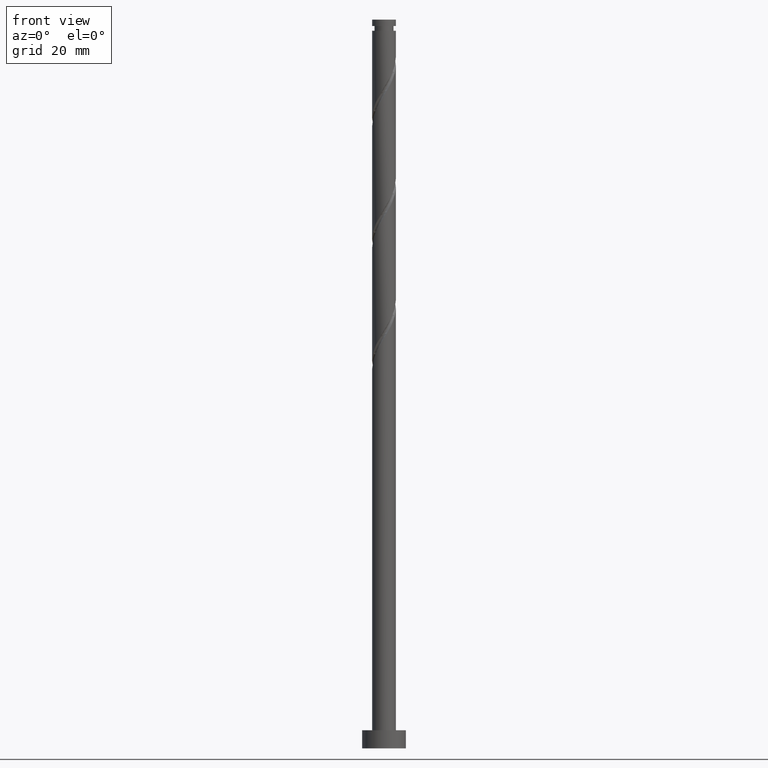
[diagram: clean part render]
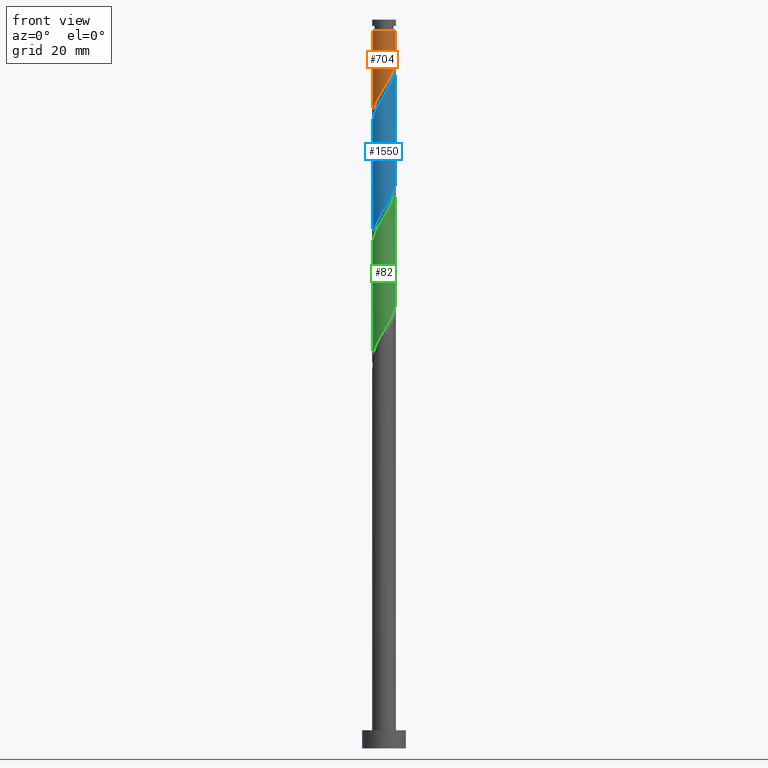
[diagram: same view with three faces highlighted in distinct colors, each labeled with its STEP entity id]
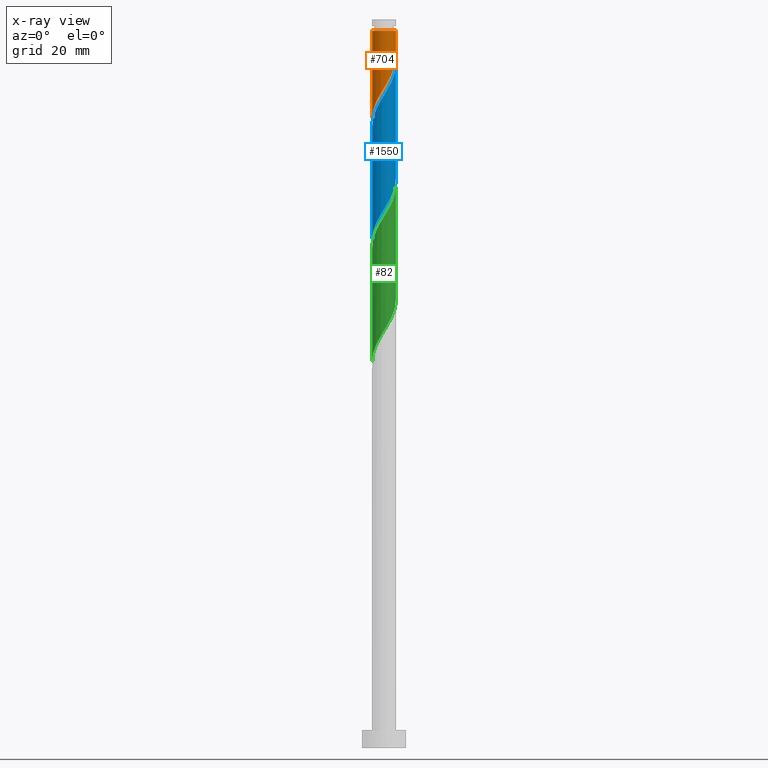
[diagram: x-ray of the same camera — body ghosted, the three highlighted faces saturated]
A machine part, front view with three faces highlighted in distinct colors.
The next image is the same camera in x-ray (body ghosted, the three faces saturated) — at least one of them is partly hidden behind the body in this view.
Their STEP definitions:

[orange] entity #704 — the highlighted cylindrical surface (edge-blend (fillet) strip) has radius 3.25 mm, axis along (-0, -0, -1).
#2 = CARTESIAN_POINT ( 'NONE',  ( 3.249999999999988454, 3.980102097228890836E-16, 196.9325658631663032 ) ) ;
#14 = ORIENTED_EDGE ( 'NONE', *, *, #625, .T. ) ;
#129 = DIRECTION ( 'NONE',  ( -0.000000000000000000, -0.000000000000000000, -1.000000000000000000 ) ) ;
#170 = CARTESIAN_POINT ( 'NONE',  ( -1.449043299168925270, -2.909084652796070980, 178.8770103076107603 ) ) ;
#187 = CARTESIAN_POINT ( 'NONE',  ( -3.250000000000000444, 0.000000000000000000, 200.0000000000000000 ) ) ;
#238 = CARTESIAN_POINT ( 'NONE',  ( -3.081661828113089197, -1.032405141962540851, 174.7103436409441031 ) ) ;
#270 = CIRCLE ( 'NONE', #360, 3.249999999999988454 ) ;
#314 = CARTESIAN_POINT ( 'NONE',  ( 0.1996340181341312026, -3.243862860665293280, 181.6547880853885601 ) ) ;
#351 = CARTESIAN_POINT ( 'NONE',  ( -0.6467418341193043041, -3.184999999999999165, 180.2658991964996460 ) ) ;
#360 = AXIS2_PLACEMENT_3D ( 'NONE', #1067, #1060, #1461 ) ;
#435 = CARTESIAN_POINT ( 'NONE',  ( 0.000000000000000000, 0.000000000000000000, 200.0000000000000000 ) ) ;
#455 = CYLINDRICAL_SURFACE ( 'NONE', #1470, 3.250000000000000444 ) ;
#466 = EDGE_LOOP ( 'NONE', ( #1538, #14, #701, #842 ) ) ;
#478 = CARTESIAN_POINT ( 'NONE',  ( 1.794819561496366900, -2.709450634661939805, 184.4325658631662748 ) ) ;
#490 =( BOUNDED_CURVE ( )  B_SPLINE_CURVE ( 2, ( #731, #598, #1007, #566, #1544, #1655, #607, #712, #478, #975, #1521, #1554, #314, #1016, #351, #881, #170, #577, #1022, #1302, #1570, #1289, #238, #493, #904, #647, #1591 ),
 .UNSPECIFIED., .F., .T. ) 
 B_SPLINE_CURVE_WITH_KNOTS ( ( 3, 2, 2, 2, 2, 2, 2, 2, 2, 2, 2, 2, 2, 3 ),
 ( 0.3045317669814464612, 0.3125000000000000000, 0.3229166666666666852, 0.3333333333333333148, 0.3437500000000000000, 0.3541666666666666852, 0.3645833333333333148, 0.3750000000000000000, 0.3854166666666666852, 0.3958333333333333148, 0.4062500000000000000, 0.4166666666666666852, 0.4270833333333333148, 0.4295317669814461836 ),
 .UNSPECIFIED. ) 
 CURVE ( )  GEOMETRIC_REPRESENTATION_ITEM ( )  RATIONAL_B_SPLINE_CURVE ( ( 0.9062941362546435009, 0.9031415850403481382, 0.9090909090909231605, 0.9013135103398417503, 0.9090909090909231605, 0.9013135103398417503, 0.9090909090909231605, 0.9013135103398417503, 0.9090909090909231605, 0.9013135103398417503, 0.9090909090909231605, 0.9013135103398417503, 0.9090909090909231605, 0.9013135103398417503, 0.9090909090909231605, 0.9013135103398417503, 0.9090909090909231605, 0.9013135103398417503, 0.9090909090909231605, 0.9013135103398417503, 0.9090909090909231605, 0.9013135103398417503, 0.9090909090909231605, 0.9013135103398417503, 0.9090909090909231605, 0.9072628343904171055, 0.9062941362546437229 ) ) 
 REPRESENTATION_ITEM ( '' )  );
#493 = CARTESIAN_POINT ( 'NONE',  ( -3.217580543574526164, -0.6266966655717119972, 174.0158991964995892 ) ) ;
#566 = CARTESIAN_POINT ( 'NONE',  ( 3.099854822243937935, -1.066055038935161958, 187.9047880853885601 ) ) ;
#577 = CARTESIAN_POINT ( 'NONE',  ( -1.832031559402689469, -2.718314483348201804, 178.1825658631663032 ) ) ;
#578 = VERTEX_POINT ( 'NONE', #1743 ) ;
#587 = VERTEX_POINT ( 'NONE', #1086 ) ;
#594 = DIRECTION ( 'NONE',  ( -0.000000000000000000, -0.000000000000000000, -1.000000000000000000 ) ) ;
#598 = CARTESIAN_POINT ( 'NONE',  ( 3.249999999999998668, -0.3266372899592530077, 189.1293728158537419 ) ) ;
#607 = CARTESIAN_POINT ( 'NONE',  ( 2.434919993993784004, -2.152594858037459868, 185.8214547520552173 ) ) ;
#625 = EDGE_CURVE ( 'NONE', #1406, #578, #270, .T. ) ;
#647 = CARTESIAN_POINT ( 'NONE',  ( -3.249999999999999112, -0.09991134288744130121, 173.1592962064045480 ) ) ;
#680 = EDGE_CURVE ( 'NONE', #578, #682, #1246, .T. ) ;
#682 = VERTEX_POINT ( 'NONE', #982 ) ;
#701 = ORIENTED_EDGE ( 'NONE', *, *, #680, .T. ) ;
#704 = ADVANCED_FACE ( 'NONE', ( #1405 ), #455, .T. ) ;
#712 = CARTESIAN_POINT ( 'NONE',  ( 2.151525504639366648, -2.473158156672227381, 185.1270103076107603 ) ) ;
#731 = CARTESIAN_POINT ( 'NONE',  ( 3.249999999999999556, 1.136487617715127584E-15, 189.6627991850430135 ) ) ;
#842 = ORIENTED_EDGE ( 'NONE', *, *, #1678, .F. ) ;
#857 = DIRECTION ( 'NONE',  ( -1.000000000000000000, 0.000000000000000000, 0.000000000000000000 ) ) ;
#881 = CARTESIAN_POINT ( 'NONE',  ( -1.066055038935160404, -3.099854822243938823, 179.5714547520551605 ) ) ;
#904 = CARTESIAN_POINT ( 'NONE',  ( -3.243862860665293280, -0.1996340181341322295, 173.3214547520552173 ) ) ;
#936 = CARTESIAN_POINT ( 'NONE',  ( 3.250000000000000444, 3.980102097228898231E-16, 200.0000000000000000 ) ) ;
#975 = CARTESIAN_POINT ( 'NONE',  ( 1.438113618353368262, -2.945743112651649565, 183.7381214187218177 ) ) ;
#982 = CARTESIAN_POINT ( 'NONE',  ( -3.250000000000000000, 2.542143355415417027E-15, 172.9961325183763847 ) ) ;
#1007 = CARTESIAN_POINT ( 'NONE',  ( 3.184999999999999165, -0.6467418341193044151, 188.5992325298330172 ) ) ;
#1016 = CARTESIAN_POINT ( 'NONE',  ( -0.2274286293034488982, -3.270145177756059507, 180.9603436409440747 ) ) ;
#1022 = CARTESIAN_POINT ( 'NONE',  ( -2.152594858037459424, -2.434919993993784448, 177.4881214187218461 ) ) ;
#1060 = DIRECTION ( 'NONE',  ( -0.000000000000000000, -0.000000000000000000, -1.000000000000000000 ) ) ;
#1067 = CARTESIAN_POINT ( 'NONE',  ( 0.000000000000000000, 0.000000000000000000, 196.9325658631663032 ) ) ;
#1086 = CARTESIAN_POINT ( 'NONE',  ( 3.249999999999999556, 1.136487617715127584E-15, 189.6627991850430135 ) ) ;
#1197 = LINE ( 'NONE', #936, #1569 ) ;
#1246 = LINE ( 'NONE', #187, #1256 ) ;
#1256 = VECTOR ( 'NONE', #594, 1000.000000000000000 ) ;
#1266 = DIRECTION ( 'NONE',  ( -0.000000000000000000, -0.000000000000000000, -1.000000000000000000 ) ) ;
#1289 = CARTESIAN_POINT ( 'NONE',  ( -2.945743112651649565, -1.438113618353368262, 175.4047880853885601 ) ) ;
#1302 = CARTESIAN_POINT ( 'NONE',  ( -2.473158156672227381, -2.151525504639367092, 176.7936769742773322 ) ) ;
#1405 = FACE_OUTER_BOUND ( 'NONE', #466, .T. ) ;
#1406 = VERTEX_POINT ( 'NONE', #2 ) ;
#1436 = EDGE_CURVE ( 'NONE', #1406, #587, #1197, .T. ) ;
#1461 = DIRECTION ( 'NONE',  ( -1.000000000000000000, 0.000000000000000000, 0.000000000000000000 ) ) ;
#1470 = AXIS2_PLACEMENT_3D ( 'NONE', #435, #1266, #857 ) ;
#1521 = CARTESIAN_POINT ( 'NONE',  ( 1.032405141962540185, -3.081661828113089197, 183.0436769742774175 ) ) ;
#1538 = ORIENTED_EDGE ( 'NONE', *, *, #1436, .F. ) ;
#1544 = CARTESIAN_POINT ( 'NONE',  ( 2.909084652796070092, -1.449043299168927268, 187.2103436409441031 ) ) ;
#1554 = CARTESIAN_POINT ( 'NONE',  ( 0.6266966655717109980, -3.217580543574526608, 182.3492325298329320 ) ) ;
#1569 = VECTOR ( 'NONE', #129, 1000.000000000000000 ) ;
#1570 = CARTESIAN_POINT ( 'NONE',  ( -2.709450634661939361, -1.794819561496368454, 176.0992325298330741 ) ) ;
#1591 = CARTESIAN_POINT ( 'NONE',  ( -3.250000000000000000, 2.542143355415417027E-15, 172.9961325183763847 ) ) ;
#1655 = CARTESIAN_POINT ( 'NONE',  ( 2.718314483348200916, -1.832031559402691023, 186.5158991964996176 ) ) ;
#1678 = EDGE_CURVE ( 'NONE', #587, #682, #490, .T. ) ;
#1743 = CARTESIAN_POINT ( 'NONE',  ( -3.249999999999988454, 0.000000000000000000, 196.9325658631663032 ) ) ;

[blue] entity #1550 — the highlighted cylindrical surface (edge-blend (fillet) strip) has radius 3.25 mm, axis along (-0, -0, -1).
#7 = CARTESIAN_POINT ( 'NONE',  ( 0.6467418341193037490, -3.185000000000004494, 180.2658991964995892 ) ) ;
#48 = CARTESIAN_POINT ( 'NONE',  ( 2.152594858037460313, -2.434919993993788889, 183.0436769742774459 ) ) ;
#68 =( BOUNDED_CURVE ( )  B_SPLINE_CURVE ( 2, ( #1065, #1740, #1189, #1611, #252, #1056, #405, #1473, #522, #1596, #810, #1218, #684, #1227, #7, #552, #1091, #391, #48, #958, #845, #1109, #462, #590, #293, #1097, #432 ),
 .UNSPECIFIED., .F., .T. ) 
 B_SPLINE_CURVE_WITH_KNOTS ( ( 3, 2, 2, 2, 2, 2, 2, 2, 2, 2, 2, 2, 2, 3 ),
 ( 0.5545317669814462391, 0.5625000000000000000, 0.5729166666666667407, 0.5833333333333332593, 0.5937500000000000000, 0.6041666666666667407, 0.6145833333333332593, 0.6250000000000000000, 0.6354166666666667407, 0.6458333333333332593, 0.6562500000000000000, 0.6666666666666667407, 0.6770833333333332593, 0.6795317669814461281 ),
 .UNSPECIFIED. ) 
 CURVE ( )  GEOMETRIC_REPRESENTATION_ITEM ( )  RATIONAL_B_SPLINE_CURVE ( ( 0.9062941362546506063, 0.9031415850403549106, 0.9090909090909304879, 0.9013135103398486336, 0.9090909090909304879, 0.9013135103398486336, 0.9090909090909304879, 0.9013135103398486336, 0.9090909090909304879, 0.9013135103398486336, 0.9090909090909304879, 0.9013135103398486336, 0.9090909090909304879, 0.9013135103398486336, 0.9090909090909304879, 0.9013135103398486336, 0.9090909090909304879, 0.9013135103398486336, 0.9090909090909304879, 0.9013135103398486336, 0.9090909090909304879, 0.9013135103398486336, 0.9090909090909304879, 0.9013135103398486336, 0.9090909090909304879, 0.9072628343904243220, 0.9062941362546508284 ) ) 
 REPRESENTATION_ITEM ( '' )  );
#145 = VERTEX_POINT ( 'NONE', #382 ) ;
#149 = CARTESIAN_POINT ( 'NONE',  ( -3.249999999999999556, -0.09991134288743169778, 139.8259628730711484 ) ) ;
#213 = VERTEX_POINT ( 'NONE', #902 ) ;
#252 = CARTESIAN_POINT ( 'NONE',  ( -2.909084652796075865, -1.449043299168925714, 173.3214547520551889 ) ) ;
#265 = CARTESIAN_POINT ( 'NONE',  ( 2.718314483348200916, -1.832031559402691023, 153.1825658631662748 ) ) ;
#273 = CARTESIAN_POINT ( 'NONE',  ( -2.945743112651649565, -1.438113618353368262, 142.0714547520551605 ) ) ;
#281 = CARTESIAN_POINT ( 'NONE',  ( 3.249999999999999556, 4.605765608634991276E-15, 156.3294658517096991 ) ) ;
#293 = CARTESIAN_POINT ( 'NONE',  ( 3.243862860665297276, -0.1996340181341360320, 187.2103436409440747 ) ) ;
#302 = CARTESIAN_POINT ( 'NONE',  ( -1.449043299168925270, -2.909084652796070980, 145.5436769742774459 ) ) ;
#326 = EDGE_CURVE ( 'NONE', #145, #213, #68, .T. ) ;
#333 = VECTOR ( 'NONE', #943, 1000.000000000000000 ) ;
#382 = CARTESIAN_POINT ( 'NONE',  ( -3.250000000000004885, 3.573954482025175950E-15, 170.8689992079562217 ) ) ;
#391 = CARTESIAN_POINT ( 'NONE',  ( 1.832031559402690801, -2.718314483348208022, 182.3492325298329888 ) ) ;
#395 = CARTESIAN_POINT ( 'NONE',  ( -3.249999999999999556, 1.269576299263346668E-14, 139.6627991850430135 ) ) ;
#403 = CARTESIAN_POINT ( 'NONE',  ( -3.243862860665293280, -0.1996340181341322295, 139.9881214187219030 ) ) ;
#405 = CARTESIAN_POINT ( 'NONE',  ( -2.434919993993788889, -2.152594858037460313, 174.7103436409440462 ) ) ;
#429 = CARTESIAN_POINT ( 'NONE',  ( 0.1996340181341312026, -3.243862860665293280, 148.3214547520552458 ) ) ;
#432 = CARTESIAN_POINT ( 'NONE',  ( 3.250000000000004441, -1.151441402158738550E-15, 187.5356658746228788 ) ) ;
#456 = EDGE_LOOP ( 'NONE', ( #1239, #1061, #1400, #1003 ) ) ;
#462 = CARTESIAN_POINT ( 'NONE',  ( 3.081661828113092305, -1.032405141962544626, 185.8214547520551037 ) ) ;
#522 = CARTESIAN_POINT ( 'NONE',  ( -1.794819561496372229, -2.709450634661942026, 176.0992325298329035 ) ) ;
#535 = CARTESIAN_POINT ( 'NONE',  ( -3.217580543574526164, -0.6266966655717119972, 140.6825658631663032 ) ) ;
#542 = CARTESIAN_POINT ( 'NONE',  ( 2.434919993993784004, -2.152594858037459868, 152.4881214187218177 ) ) ;
#552 = CARTESIAN_POINT ( 'NONE',  ( 1.066055038935160182, -3.099854822243945929, 180.9603436409440462 ) ) ;
#590 = CARTESIAN_POINT ( 'NONE',  ( 3.217580543574532381, -0.6266966655717167711, 186.5158991964997028 ) ) ;
#669 = CARTESIAN_POINT ( 'NONE',  ( -3.250000000000000444, 0.000000000000000000, 200.0000000000000000 ) ) ;
#673 = CARTESIAN_POINT ( 'NONE',  ( 3.250000000000001332, -0.3266372899592377976, 155.7960394825204276 ) ) ;
#684 = CARTESIAN_POINT ( 'NONE',  ( -0.1996340181341343112, -3.243862860665297276, 178.8770103076107034 ) ) ;
#700 = DIRECTION ( 'NONE',  ( -0.000000000000000000, -0.000000000000000000, -1.000000000000000000 ) ) ;
#755 = VERTEX_POINT ( 'NONE', #1101 ) ;
#808 = CYLINDRICAL_SURFACE ( 'NONE', #1397, 3.250000000000000444 ) ;
#810 = CARTESIAN_POINT ( 'NONE',  ( -1.032405141962544182, -3.081661828113091861, 177.4881214187218177 ) ) ;
#820 = CARTESIAN_POINT ( 'NONE',  ( 1.032405141962540185, -3.081661828113089197, 149.7103436409440462 ) ) ;
#830 = CARTESIAN_POINT ( 'NONE',  ( -2.473158156672227381, -2.151525504639367092, 143.4603436409440747 ) ) ;
#845 = CARTESIAN_POINT ( 'NONE',  ( 2.709450634661941137, -1.794819561496373117, 184.4325658631662463 ) ) ;
#902 = CARTESIAN_POINT ( 'NONE',  ( 3.250000000000004441, -1.151441402158738550E-15, 187.5356658746228788 ) ) ;
#913 =( BOUNDED_CURVE ( )  B_SPLINE_CURVE ( 2, ( #281, #673, #1215, #1089, #1463, #265, #542, #1747, #956, #1602, #820, #1335, #429, #1499, #948, #1207, #302, #1077, #1615, #830, #1348, #273, #1738, #535, #403, #149, #395 ),
 .UNSPECIFIED., .F., .T. ) 
 B_SPLINE_CURVE_WITH_KNOTS ( ( 3, 2, 2, 2, 2, 2, 2, 2, 2, 2, 2, 2, 2, 3 ),
 ( 0.5545317669814461281, 0.5625000000000000000, 0.5729166666666666297, 0.5833333333333333703, 0.5937500000000000000, 0.6041666666666666297, 0.6145833333333333703, 0.6250000000000000000, 0.6354166666666666297, 0.6458333333333333703, 0.6562500000000000000, 0.6666666666666666297, 0.6770833333333333703, 0.6795317669814464612 ),
 .UNSPECIFIED. ) 
 CURVE ( )  GEOMETRIC_REPRESENTATION_ITEM ( )  RATIONAL_B_SPLINE_CURVE ( ( 0.9062941362546436119, 0.9031415850403476941, 0.9090909090909231605, 0.9013135103398417503, 0.9090909090909231605, 0.9013135103398417503, 0.9090909090909231605, 0.9013135103398417503, 0.9090909090909231605, 0.9013135103398417503, 0.9090909090909231605, 0.9013135103398417503, 0.9090909090909231605, 0.9013135103398417503, 0.9090909090909231605, 0.9013135103398417503, 0.9090909090909231605, 0.9013135103398417503, 0.9090909090909231605, 0.9013135103398417503, 0.9090909090909231605, 0.9013135103398417503, 0.9090909090909231605, 0.9013135103398417503, 0.9090909090909231605, 0.9072628343904168835, 0.9062941362546435009 ) ) 
 REPRESENTATION_ITEM ( '' )  );
#920 = EDGE_CURVE ( 'NONE', #145, #1384, #1725, .T. ) ;
#943 = DIRECTION ( 'NONE',  ( -0.000000000000000000, -0.000000000000000000, -1.000000000000000000 ) ) ;
#948 = CARTESIAN_POINT ( 'NONE',  ( -0.6467418341193043041, -3.184999999999999165, 146.9325658631662748 ) ) ;
#956 = CARTESIAN_POINT ( 'NONE',  ( 1.794819561496366900, -2.709450634661939805, 151.0992325298329888 ) ) ;
#958 = CARTESIAN_POINT ( 'NONE',  ( 2.473158156672230046, -2.151525504639372866, 183.7381214187218745 ) ) ;
#1003 = ORIENTED_EDGE ( 'NONE', *, *, #1571, .F. ) ;
#1056 = CARTESIAN_POINT ( 'NONE',  ( -2.718314483348208022, -1.832031559402691467, 174.0158991964995892 ) ) ;
#1061 = ORIENTED_EDGE ( 'NONE', *, *, #326, .F. ) ;
#1065 = CARTESIAN_POINT ( 'NONE',  ( -3.250000000000004885, 3.573954482025175950E-15, 170.8689992079562217 ) ) ;
#1077 = CARTESIAN_POINT ( 'NONE',  ( -1.832031559402689469, -2.718314483348201804, 144.8492325298329604 ) ) ;
#1089 = CARTESIAN_POINT ( 'NONE',  ( 3.099854822243937935, -1.066055038935161958, 154.5714547520551889 ) ) ;
#1091 = CARTESIAN_POINT ( 'NONE',  ( 1.449043299168925047, -2.909084652796076309, 181.6547880853884465 ) ) ;
#1095 = CARTESIAN_POINT ( 'NONE',  ( 0.000000000000000000, 0.000000000000000000, 200.0000000000000000 ) ) ;
#1097 = CARTESIAN_POINT ( 'NONE',  ( 3.250000000000004441, -0.09991134288744570047, 187.3725021865947440 ) ) ;
#1101 = CARTESIAN_POINT ( 'NONE',  ( 3.249999999999999556, 4.605765608634991276E-15, 156.3294658517096991 ) ) ;
#1109 = CARTESIAN_POINT ( 'NONE',  ( 2.945743112651654005, -1.438113618353373369, 185.1270103076107603 ) ) ;
#1145 = LINE ( 'NONE', #1685, #1505 ) ;
#1189 = CARTESIAN_POINT ( 'NONE',  ( -3.185000000000004494, -0.6467418341193040821, 171.9325658631662748 ) ) ;
#1207 = CARTESIAN_POINT ( 'NONE',  ( -1.066055038935160404, -3.099854822243938823, 146.2381214187218177 ) ) ;
#1215 = CARTESIAN_POINT ( 'NONE',  ( 3.184999999999999165, -0.6467418341193044151, 155.2658991964996744 ) ) ;
#1218 = CARTESIAN_POINT ( 'NONE',  ( -0.6266966655717152168, -3.217580543574532381, 178.1825658631663316 ) ) ;
#1227 = CARTESIAN_POINT ( 'NONE',  ( 0.2274286293034465667, -3.270145177756065280, 179.5714547520552458 ) ) ;
#1239 = ORIENTED_EDGE ( 'NONE', *, *, #1626, .F. ) ;
#1335 = CARTESIAN_POINT ( 'NONE',  ( 0.6266966655717109980, -3.217580543574526608, 149.0158991964995892 ) ) ;
#1343 = DIRECTION ( 'NONE',  ( -0.000000000000000000, -0.000000000000000000, -1.000000000000000000 ) ) ;
#1348 = CARTESIAN_POINT ( 'NONE',  ( -2.709450634661939361, -1.794819561496368454, 142.7658991964996460 ) ) ;
#1364 = FACE_OUTER_BOUND ( 'NONE', #456, .T. ) ;
#1384 = VERTEX_POINT ( 'NONE', #1491 ) ;
#1397 = AXIS2_PLACEMENT_3D ( 'NONE', #1095, #1343, #1469 ) ;
#1400 = ORIENTED_EDGE ( 'NONE', *, *, #920, .T. ) ;
#1463 = CARTESIAN_POINT ( 'NONE',  ( 2.909084652796070092, -1.449043299168927268, 153.8770103076107887 ) ) ;
#1469 = DIRECTION ( 'NONE',  ( -1.000000000000000000, 0.000000000000000000, 0.000000000000000000 ) ) ;
#1473 = CARTESIAN_POINT ( 'NONE',  ( -2.151525504639372866, -2.473158156672230046, 175.4047880853885601 ) ) ;
#1491 = CARTESIAN_POINT ( 'NONE',  ( -3.249999999999999556, 1.269576299263346668E-14, 139.6627991850430135 ) ) ;
#1499 = CARTESIAN_POINT ( 'NONE',  ( -0.2274286293034488982, -3.270145177756059507, 147.6270103076107034 ) ) ;
#1505 = VECTOR ( 'NONE', #700, 1000.000000000000000 ) ;
#1550 = ADVANCED_FACE ( 'NONE', ( #1364 ), #808, .T. ) ;
#1571 = EDGE_CURVE ( 'NONE', #755, #1384, #913, .T. ) ;
#1596 = CARTESIAN_POINT ( 'NONE',  ( -1.438113618353373369, -2.945743112651654894, 176.7936769742773890 ) ) ;
#1602 = CARTESIAN_POINT ( 'NONE',  ( 1.438113618353368262, -2.945743112651649565, 150.4047880853885317 ) ) ;
#1611 = CARTESIAN_POINT ( 'NONE',  ( -3.099854822243945929, -1.066055038935160182, 172.6270103076107603 ) ) ;
#1615 = CARTESIAN_POINT ( 'NONE',  ( -2.152594858037459424, -2.434919993993784448, 144.1547880853885033 ) ) ;
#1626 = EDGE_CURVE ( 'NONE', #213, #755, #1145, .T. ) ;
#1685 = CARTESIAN_POINT ( 'NONE',  ( 3.250000000000000444, 3.980102097228898231E-16, 200.0000000000000000 ) ) ;
#1725 = LINE ( 'NONE', #669, #333 ) ;
#1738 = CARTESIAN_POINT ( 'NONE',  ( -3.081661828113089197, -1.032405141962540851, 141.3770103076107318 ) ) ;
#1740 = CARTESIAN_POINT ( 'NONE',  ( -3.250000000000004885, -0.3266372899592444035, 171.4024255771454932 ) ) ;
#1747 = CARTESIAN_POINT ( 'NONE',  ( 2.151525504639366648, -2.473158156672227381, 151.7936769742773890 ) ) ;

[green] entity #82 — the highlighted cylindrical surface (edge-blend (fillet) strip) has radius 3.25 mm, axis along (-0, -0, -1).
#39 = CARTESIAN_POINT ( 'NONE',  ( -3.250000000000004441, -2.048668468775938040E-15, 137.5356658746228788 ) ) ;
#56 = CARTESIAN_POINT ( 'NONE',  ( -3.185000000000004494, -0.6467418341193040821, 138.5992325298329604 ) ) ;
#77 = CARTESIAN_POINT ( 'NONE',  ( -0.2274286293034488982, -3.270145177756059507, 114.2936769742774032 ) ) ;
#82 = ADVANCED_FACE ( 'NONE', ( #770 ), #363, .T. ) ;
#96 = DIRECTION ( 'NONE',  ( -0.000000000000000000, -0.000000000000000000, -1.000000000000000000 ) ) ;
#106 = CARTESIAN_POINT ( 'NONE',  ( 1.032405141962540185, -3.081661828113089197, 116.3770103076107461 ) ) ;
#162 = DIRECTION ( 'NONE',  ( -0.000000000000000000, -0.000000000000000000, -1.000000000000000000 ) ) ;
#185 = CARTESIAN_POINT ( 'NONE',  ( -2.152594858037459424, -2.434919993993784448, 110.8214547520552031 ) ) ;
#191 = CARTESIAN_POINT ( 'NONE',  ( -3.250000000000001776, -0.3266372899592634993, 138.0690922438122072 ) ) ;
#197 = CARTESIAN_POINT ( 'NONE',  ( -3.249999999999999556, -0.09991134288743626357, 106.4926295397378482 ) ) ;
#215 = CARTESIAN_POINT ( 'NONE',  ( 2.152594858037460313, -2.434919993993788889, 149.7103436409440178 ) ) ;
#236 = CARTESIAN_POINT ( 'NONE',  ( 0.000000000000000000, 0.000000000000000000, 200.0000000000000000 ) ) ;
#313 =( BOUNDED_CURVE ( )  B_SPLINE_CURVE ( 2, ( #852, #191, #56, #439, #1511, #586, #321, #1271, #1105, #342, #841, #1136, #871, #458, #1376, #1674, #1388, #1126, #215, #1665, #1399, #1250, #986, #469, #742, #721, #330 ),
 .UNSPECIFIED., .F., .T. ) 
 B_SPLINE_CURVE_WITH_KNOTS ( ( 3, 2, 2, 2, 2, 2, 2, 2, 2, 2, 2, 2, 2, 3 ),
 ( 0.3045317669814467942, 0.3125000000000000000, 0.3229166666666666297, 0.3333333333333333703, 0.3437500000000000000, 0.3541666666666666297, 0.3645833333333333703, 0.3750000000000000000, 0.3854166666666666297, 0.3958333333333333703, 0.4062500000000000000, 0.4166666666666666297, 0.4270833333333333703, 0.4295317669814462391 ),
 .UNSPECIFIED. ) 
 CURVE ( )  GEOMETRIC_REPRESENTATION_ITEM ( )  RATIONAL_B_SPLINE_CURVE ( ( 0.9062941362546502733, 0.9031415850403552437, 0.9090909090909304879, 0.9013135103398486336, 0.9090909090909304879, 0.9013135103398486336, 0.9090909090909304879, 0.9013135103398486336, 0.9090909090909304879, 0.9013135103398486336, 0.9090909090909304879, 0.9013135103398486336, 0.9090909090909304879, 0.9013135103398486336, 0.9090909090909304879, 0.9013135103398486336, 0.9090909090909304879, 0.9013135103398486336, 0.9090909090909304879, 0.9013135103398486336, 0.9090909090909304879, 0.9013135103398486336, 0.9090909090909304879, 0.9013135103398486336, 0.9090909090909304879, 0.9072628343904242110, 0.9062941362546507174 ) ) 
 REPRESENTATION_ITEM ( '' )  );
#321 = CARTESIAN_POINT ( 'NONE',  ( -2.434919993993788889, -2.152594858037460313, 141.3770103076107318 ) ) ;
#328 = ORIENTED_EDGE ( 'NONE', *, *, #999, .F. ) ;
#330 = CARTESIAN_POINT ( 'NONE',  ( 3.250000000000004441, -4.486135333085995847E-17, 154.2023325412895929 ) ) ;
#337 = CARTESIAN_POINT ( 'NONE',  ( -3.081661828113089197, -1.032405141962540851, 108.0436769742774175 ) ) ;
#342 = CARTESIAN_POINT ( 'NONE',  ( -1.438113618353373369, -2.945743112651654894, 143.4603436409440747 ) ) ;
#363 = CYLINDRICAL_SURFACE ( 'NONE', #1054, 3.250000000000000444 ) ;
#384 = VECTOR ( 'NONE', #162, 1000.000000000000000 ) ;
#389 = CARTESIAN_POINT ( 'NONE',  ( 3.099854822243937935, -1.066055038935161958, 121.2381214187218461 ) ) ;
#413 = VERTEX_POINT ( 'NONE', #1606 ) ;
#439 = CARTESIAN_POINT ( 'NONE',  ( -3.099854822243945929, -1.066055038935160182, 139.2936769742774459 ) ) ;
#453 = CARTESIAN_POINT ( 'NONE',  ( -3.243862860665293280, -0.1996340181341322295, 106.6547880853885317 ) ) ;
#458 = CARTESIAN_POINT ( 'NONE',  ( 0.2274286293034465667, -3.270145177756065280, 146.2381214187219030 ) ) ;
#469 = CARTESIAN_POINT ( 'NONE',  ( 3.217580543574532381, -0.6266966655717167711, 153.1825658631663032 ) ) ;
#506 = CARTESIAN_POINT ( 'NONE',  ( 2.909084652796070092, -1.449043299168927268, 120.5436769742774317 ) ) ;
#520 = CARTESIAN_POINT ( 'NONE',  ( 3.184999999999999165, -0.6467418341193044151, 121.9325658631663032 ) ) ;
#555 = ORIENTED_EDGE ( 'NONE', *, *, #1483, .T. ) ;
#571 = ORIENTED_EDGE ( 'NONE', *, *, #1589, .F. ) ;
#586 = CARTESIAN_POINT ( 'NONE',  ( -2.718314483348208022, -1.832031559402691467, 140.6825658631663032 ) ) ;
#603 = EDGE_LOOP ( 'NONE', ( #328, #571, #555, #1114 ) ) ;
#708 = VERTEX_POINT ( 'NONE', #39 ) ;
#721 = CARTESIAN_POINT ( 'NONE',  ( 3.250000000000004441, -0.09991134288744464576, 154.0391688532614012 ) ) ;
#742 = CARTESIAN_POINT ( 'NONE',  ( 3.243862860665297276, -0.1996340181341360320, 153.8770103076107887 ) ) ;
#770 = FACE_OUTER_BOUND ( 'NONE', #603, .T. ) ;
#814 = CARTESIAN_POINT ( 'NONE',  ( -3.250000000000000444, 0.000000000000000000, 200.0000000000000000 ) ) ;
#841 = CARTESIAN_POINT ( 'NONE',  ( -1.032405141962544182, -3.081661828113091861, 144.1547880853885317 ) ) ;
#852 = CARTESIAN_POINT ( 'NONE',  ( -3.250000000000004441, -2.048668468775938040E-15, 137.5356658746228788 ) ) ;
#864 = CARTESIAN_POINT ( 'NONE',  ( -3.250000000000000000, 3.618815835356064856E-15, 106.3294658517096707 ) ) ;
#868 = EDGE_CURVE ( 'NONE', #1646, #1744, #1366, .T. ) ;
#871 = CARTESIAN_POINT ( 'NONE',  ( -0.1996340181341343112, -3.243862860665297276, 145.5436769742773606 ) ) ;
#875 = CARTESIAN_POINT ( 'NONE',  ( -1.832031559402689469, -2.718314483348201804, 111.5158991964996034 ) ) ;
#891 = CARTESIAN_POINT ( 'NONE',  ( 3.250000000000000444, -0.3266372899592422940, 122.4627061491870847 ) ) ;
#899 = CARTESIAN_POINT ( 'NONE',  ( 2.434919993993784004, -2.152594858037459868, 119.1547880853885459 ) ) ;
#908 = CARTESIAN_POINT ( 'NONE',  ( 3.249999999999999556, 4.605765608634991276E-15, 122.9961325183763563 ) ) ;
#916 = CARTESIAN_POINT ( 'NONE',  ( 0.6266966655717109980, -3.217580543574526608, 115.6825658631662606 ) ) ;
#980 = CARTESIAN_POINT ( 'NONE',  ( -0.6467418341193043041, -3.184999999999999165, 113.5992325298329604 ) ) ;
#986 = CARTESIAN_POINT ( 'NONE',  ( 3.081661828113092305, -1.032405141962544626, 152.4881214187218461 ) ) ;
#999 = EDGE_CURVE ( 'NONE', #413, #1646, #1361, .T. ) ;
#1025 = CARTESIAN_POINT ( 'NONE',  ( -1.066055038935160404, -3.099854822243938823, 112.9047880853885033 ) ) ;
#1034 = CARTESIAN_POINT ( 'NONE',  ( 2.718314483348200916, -1.832031559402691023, 119.8492325298329604 ) ) ;
#1054 = AXIS2_PLACEMENT_3D ( 'NONE', #236, #96, #1690 ) ;
#1105 = CARTESIAN_POINT ( 'NONE',  ( -1.794819561496372229, -2.709450634661942026, 142.7658991964995892 ) ) ;
#1114 = ORIENTED_EDGE ( 'NONE', *, *, #868, .F. ) ;
#1126 = CARTESIAN_POINT ( 'NONE',  ( 1.832031559402690801, -2.718314483348208022, 149.0158991964996176 ) ) ;
#1132 = CARTESIAN_POINT ( 'NONE',  ( -2.709450634661939361, -1.794819561496368454, 109.4325658631663032 ) ) ;
#1136 = CARTESIAN_POINT ( 'NONE',  ( -0.6266966655717152168, -3.217580543574532381, 144.8492325298329604 ) ) ;
#1149 = CARTESIAN_POINT ( 'NONE',  ( -2.945743112651649565, -1.438113618353368262, 108.7381214187218319 ) ) ;
#1168 = CARTESIAN_POINT ( 'NONE',  ( -3.250000000000000000, 3.618815835356064856E-15, 106.3294658517096707 ) ) ;
#1250 = CARTESIAN_POINT ( 'NONE',  ( 2.945743112651654005, -1.438113618353373369, 151.7936769742774175 ) ) ;
#1271 = CARTESIAN_POINT ( 'NONE',  ( -2.151525504639372866, -2.473158156672230046, 142.0714547520552742 ) ) ;
#1361 = LINE ( 'NONE', #1669, #384 ) ;
#1366 =( BOUNDED_CURVE ( )  B_SPLINE_CURVE ( 2, ( #908, #891, #520, #389, #506, #1034, #899, #1586, #1428, #1580, #106, #916, #1435, #77, #980, #1025, #1565, #875, #185, #1535, #1132, #1149, #337, #1382, #453, #197, #864 ),
 .UNSPECIFIED., .F., .T. ) 
 B_SPLINE_CURVE_WITH_KNOTS ( ( 3, 2, 2, 2, 2, 2, 2, 2, 2, 2, 2, 2, 2, 3 ),
 ( 0.8045317669814462391, 0.8125000000000000000, 0.8229166666666666297, 0.8333333333333333703, 0.8437500000000000000, 0.8541666666666666297, 0.8645833333333333703, 0.8750000000000000000, 0.8854166666666666297, 0.8958333333333333703, 0.9062500000000000000, 0.9166666666666666297, 0.9270833333333333703, 0.9295317669814463502 ),
 .UNSPECIFIED. ) 
 CURVE ( )  GEOMETRIC_REPRESENTATION_ITEM ( )  RATIONAL_B_SPLINE_CURVE ( ( 0.9062941362546436119, 0.9031415850403479162, 0.9090909090909231605, 0.9013135103398417503, 0.9090909090909231605, 0.9013135103398417503, 0.9090909090909231605, 0.9013135103398417503, 0.9090909090909231605, 0.9013135103398417503, 0.9090909090909231605, 0.9013135103398417503, 0.9090909090909231605, 0.9013135103398417503, 0.9090909090909231605, 0.9013135103398417503, 0.9090909090909231605, 0.9013135103398417503, 0.9090909090909231605, 0.9013135103398417503, 0.9090909090909231605, 0.9013135103398417503, 0.9090909090909231605, 0.9013135103398417503, 0.9090909090909231605, 0.9072628343904168835, 0.9062941362546435009 ) ) 
 REPRESENTATION_ITEM ( '' )  );
#1376 = CARTESIAN_POINT ( 'NONE',  ( 0.6467418341193037490, -3.185000000000004494, 146.9325658631662463 ) ) ;
#1382 = CARTESIAN_POINT ( 'NONE',  ( -3.217580543574526164, -0.6266966655717119972, 107.3492325298329746 ) ) ;
#1388 = CARTESIAN_POINT ( 'NONE',  ( 1.449043299168925047, -2.909084652796076309, 148.3214547520551889 ) ) ;
#1399 = CARTESIAN_POINT ( 'NONE',  ( 2.709450634661941137, -1.794819561496373117, 151.0992325298329604 ) ) ;
#1428 = CARTESIAN_POINT ( 'NONE',  ( 1.794819561496366900, -2.709450634661939805, 117.7658991964996602 ) ) ;
#1435 = CARTESIAN_POINT ( 'NONE',  ( 0.1996340181341312026, -3.243862860665293280, 114.9881214187218461 ) ) ;
#1483 = EDGE_CURVE ( 'NONE', #708, #1744, #1732, .T. ) ;
#1511 = CARTESIAN_POINT ( 'NONE',  ( -2.909084652796075865, -1.449043299168925714, 139.9881214187217893 ) ) ;
#1532 = CARTESIAN_POINT ( 'NONE',  ( 3.249999999999999556, 4.605765608634991276E-15, 122.9961325183763705 ) ) ;
#1535 = CARTESIAN_POINT ( 'NONE',  ( -2.473158156672227381, -2.151525504639367092, 110.1270103076107318 ) ) ;
#1565 = CARTESIAN_POINT ( 'NONE',  ( -1.449043299168925270, -2.909084652796070980, 112.2103436409440604 ) ) ;
#1580 = CARTESIAN_POINT ( 'NONE',  ( 1.438113618353368262, -2.945743112651649565, 117.0714547520551463 ) ) ;
#1586 = CARTESIAN_POINT ( 'NONE',  ( 2.151525504639366648, -2.473158156672227381, 118.4603436409440747 ) ) ;
#1589 = EDGE_CURVE ( 'NONE', #708, #413, #313, .T. ) ;
#1606 = CARTESIAN_POINT ( 'NONE',  ( 3.250000000000004441, -4.486135333085995230E-17, 154.2023325412895929 ) ) ;
#1618 = VECTOR ( 'NONE', #1625, 1000.000000000000000 ) ;
#1625 = DIRECTION ( 'NONE',  ( -0.000000000000000000, -0.000000000000000000, -1.000000000000000000 ) ) ;
#1646 = VERTEX_POINT ( 'NONE', #1532 ) ;
#1665 = CARTESIAN_POINT ( 'NONE',  ( 2.473158156672230046, -2.151525504639372866, 150.4047880853885317 ) ) ;
#1669 = CARTESIAN_POINT ( 'NONE',  ( 3.250000000000000444, 3.980102097228898231E-16, 200.0000000000000000 ) ) ;
#1674 = CARTESIAN_POINT ( 'NONE',  ( 1.066055038935160182, -3.099854822243945929, 147.6270103076107034 ) ) ;
#1690 = DIRECTION ( 'NONE',  ( -1.000000000000000000, 0.000000000000000000, 0.000000000000000000 ) ) ;
#1732 = LINE ( 'NONE', #814, #1618 ) ;
#1744 = VERTEX_POINT ( 'NONE', #1168 ) ;